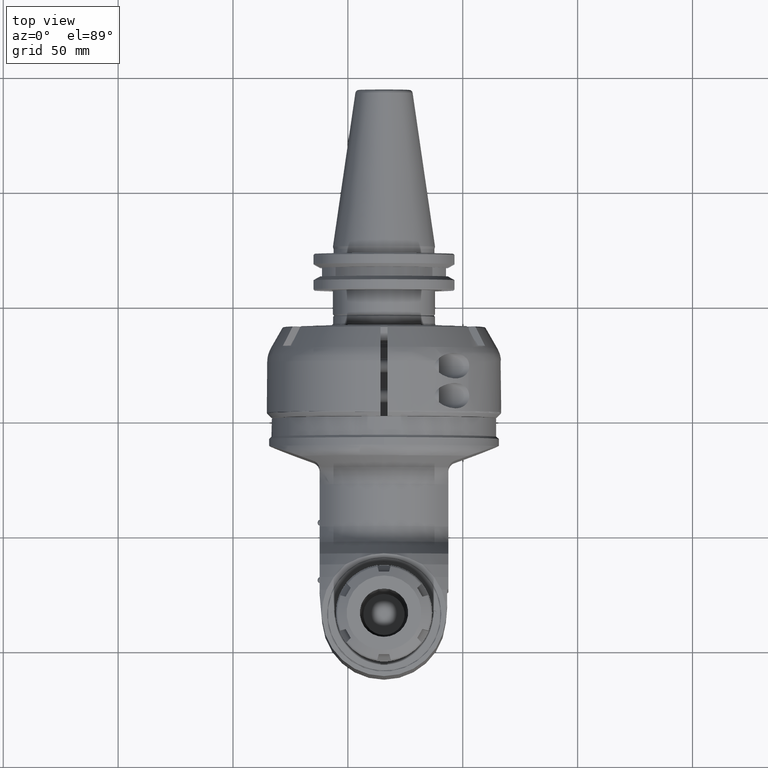
[diagram: clean part render]
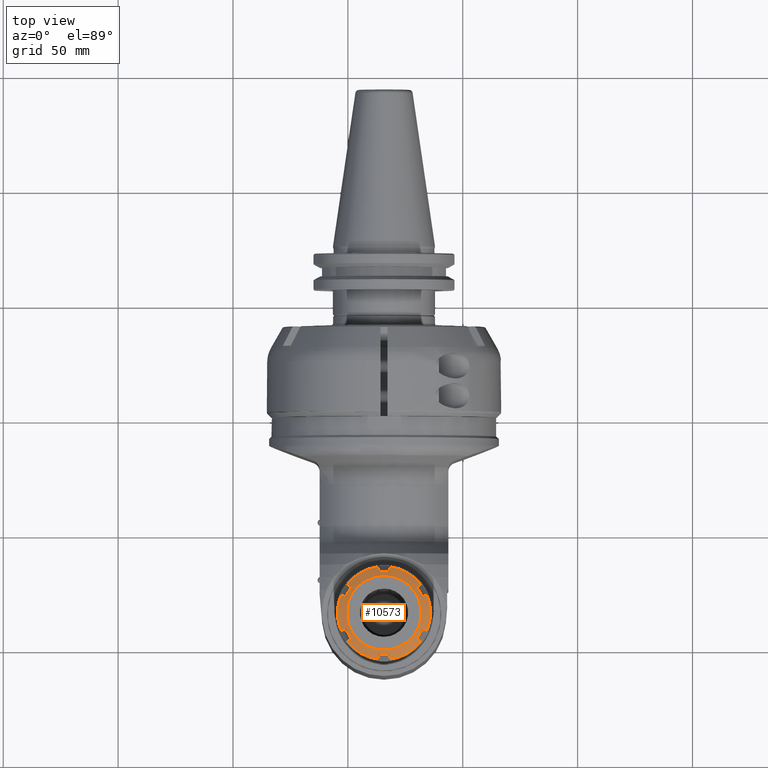
[diagram: same view with one face highlighted and labeled with its STEP entity id]
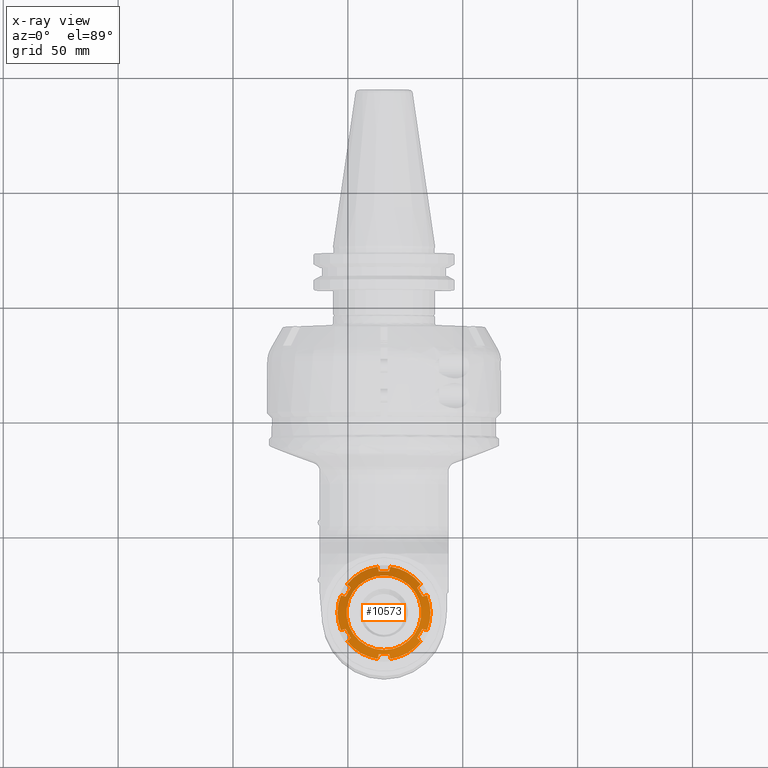
[diagram: x-ray of the same camera — body ghosted, the highlighted face saturated]
A machine part, top view. The second image highlights one B-rep face of the part: STEP entity #10573.
The next image is the same camera in x-ray: the body ghosted, the highlighted face saturated — about 0% of this face is hidden behind the body in this view.
In plain terms, the highlighted conical surface has half-angle 60 deg.
Its self-contained STEP definition (entity closure, byte-faithful):
#112=CONICAL_SURFACE('',#11471,18.25,1.0471975511966);
#404=(
BOUNDED_CURVE()
B_SPLINE_CURVE(2,(#16870,#16871,#16872),.UNSPECIFIED.,.F.,.F.)
B_SPLINE_CURVE_WITH_KNOTS((3,3),(-2.04181766349261,-1.49336527301887),
 .UNSPECIFIED.)
CURVE()
GEOMETRIC_REPRESENTATION_ITEM()
RATIONAL_B_SPLINE_CURVE((1.18733146254207,1.19657153956018,1.1873314625443))
REPRESENTATION_ITEM('')
);
#405=(
BOUNDED_CURVE()
B_SPLINE_CURVE(2,(#16875,#16876,#16877),.UNSPECIFIED.,.F.,.F.)
B_SPLINE_CURVE_WITH_KNOTS((3,3),(-1.02537702850283,-0.679971834420261),
 .UNSPECIFIED.)
CURVE()
GEOMETRIC_REPRESENTATION_ITEM()
RATIONAL_B_SPLINE_CURVE((1.0681827583946,1.06144565252281,1.05151055916344))
REPRESENTATION_ITEM('')
);
#406=(
BOUNDED_CURVE()
B_SPLINE_CURVE(2,(#16899,#16900,#16901),.UNSPECIFIED.,.F.,.F.)
B_SPLINE_CURVE_WITH_KNOTS((3,3),(0.679971647622974,1.02537702850832),
 .UNSPECIFIED.)
CURVE()
GEOMETRIC_REPRESENTATION_ITEM()
RATIONAL_B_SPLINE_CURVE((1.0515105484205,1.06144564888304,1.06818275839875))
REPRESENTATION_ITEM('')
);
#407=(
BOUNDED_CURVE()
B_SPLINE_CURVE(2,(#16912,#16913,#16914),.UNSPECIFIED.,.F.,.F.)
B_SPLINE_CURVE_WITH_KNOTS((3,3),(-2.04181760293169,-1.49336533351316),
 .UNSPECIFIED.)
CURVE()
GEOMETRIC_REPRESENTATION_ITEM()
RATIONAL_B_SPLINE_CURVE((1.18733146458299,1.19657153752098,1.18733146458292))
REPRESENTATION_ITEM('')
);
#408=(
BOUNDED_CURVE()
B_SPLINE_CURVE(2,(#16917,#16918,#16919),.UNSPECIFIED.,.F.,.F.)
B_SPLINE_CURVE_WITH_KNOTS((3,3),(2.48068688837164,2.82609226927719),
 .UNSPECIFIED.)
CURVE()
GEOMETRIC_REPRESENTATION_ITEM()
RATIONAL_B_SPLINE_CURVE((1.06818275839677,1.06144564888082,1.05151054841773))
REPRESENTATION_ITEM('')
);
#409=(
BOUNDED_CURVE()
B_SPLINE_CURVE(2,(#16943,#16944,#16945),.UNSPECIFIED.,.F.,.F.)
B_SPLINE_CURVE_WITH_KNOTS((3,3),(-2.82609226929858,-2.48068688839548),
 .UNSPECIFIED.)
CURVE()
GEOMETRIC_REPRESENTATION_ITEM()
RATIONAL_B_SPLINE_CURVE((1.0515105484154,1.06144564887802,1.06818275839371))
REPRESENTATION_ITEM('')
);
#410=(
BOUNDED_CURVE()
B_SPLINE_CURVE(2,(#16954,#16955,#16956),.UNSPECIFIED.,.F.,.F.)
B_SPLINE_CURVE_WITH_KNOTS((3,3),(-2.04181760293166,-1.49336533351213),
 .UNSPECIFIED.)
CURVE()
GEOMETRIC_REPRESENTATION_ITEM()
RATIONAL_B_SPLINE_CURVE((1.18733146458258,1.19657153752061,1.18733146458255))
REPRESENTATION_ITEM('')
);
#411=(
BOUNDED_CURVE()
B_SPLINE_CURVE(2,(#16959,#16960,#16961),.UNSPECIFIED.,.F.,.F.)
B_SPLINE_CURVE_WITH_KNOTS((3,3),(2.4806868883778,2.82609226928034),
 .UNSPECIFIED.)
CURVE()
GEOMETRIC_REPRESENTATION_ITEM()
RATIONAL_B_SPLINE_CURVE((1.06818275839299,1.06144564887741,1.05151054841492))
REPRESENTATION_ITEM('')
);
#412=(
BOUNDED_CURVE()
B_SPLINE_CURVE(2,(#16983,#16984,#16985),.UNSPECIFIED.,.F.,.F.)
B_SPLINE_CURVE_WITH_KNOTS((3,3),(0.679971878030446,1.02537702850891),
 .UNSPECIFIED.)
CURVE()
GEOMETRIC_REPRESENTATION_ITEM()
RATIONAL_B_SPLINE_CURVE((1.05151056167654,1.06144565337878,1.06818275840063))
REPRESENTATION_ITEM('')
);
#413=(
BOUNDED_CURVE()
B_SPLINE_CURVE(2,(#16997,#16998,#16999),.UNSPECIFIED.,.F.,.F.)
B_SPLINE_CURVE_WITH_KNOTS((3,3),(-2.04181765173791,-1.76759146822259),
 .UNSPECIFIED.)
CURVE()
GEOMETRIC_REPRESENTATION_ITEM()
RATIONAL_B_SPLINE_CURVE((1.18733146293815,1.19195150105168,1.19195150105168))
REPRESENTATION_ITEM('')
);
#414=(
BOUNDED_CURVE()
B_SPLINE_CURVE(2,(#17000,#17001,#17002),.UNSPECIFIED.,.F.,.F.)
B_SPLINE_CURVE_WITH_KNOTS((3,3),(-1.76759146822259,-1.49336527293742),
 .UNSPECIFIED.)
CURVE()
GEOMETRIC_REPRESENTATION_ITEM()
RATIONAL_B_SPLINE_CURVE((1.19195150105168,1.19195150105168,1.18733146254156))
REPRESENTATION_ITEM('')
);
#415=(
BOUNDED_CURVE()
B_SPLINE_CURVE(2,(#17005,#17006,#17007),.UNSPECIFIED.,.F.,.F.)
B_SPLINE_CURVE_WITH_KNOTS((3,3),(2.48068688838122,2.82609208220823),
 .UNSPECIFIED.)
CURVE()
GEOMETRIC_REPRESENTATION_ITEM()
RATIONAL_B_SPLINE_CURVE((1.06818275838734,1.06144565252115,1.05151055917244))
REPRESENTATION_ITEM('')
);
#416=(
BOUNDED_CURVE()
B_SPLINE_CURVE(2,(#17029,#17030,#17031),.UNSPECIFIED.,.F.,.F.)
B_SPLINE_CURVE_WITH_KNOTS((3,3),(-2.82609226927535,-2.48068688837049),
 .UNSPECIFIED.)
CURVE()
GEOMETRIC_REPRESENTATION_ITEM()
RATIONAL_B_SPLINE_CURVE((1.05151054841945,1.06144564888281,1.06818275839895))
REPRESENTATION_ITEM('')
);
#417=(
BOUNDED_CURVE()
B_SPLINE_CURVE(2,(#17042,#17043,#17044),.UNSPECIFIED.,.F.,.F.)
B_SPLINE_CURVE_WITH_KNOTS((3,3),(1.49336533351299,2.04181760293252),
 .UNSPECIFIED.)
CURVE()
GEOMETRIC_REPRESENTATION_ITEM()
RATIONAL_B_SPLINE_CURVE((1.18733146458257,1.1965715375206,1.18733146458253))
REPRESENTATION_ITEM('')
);
#418=(
BOUNDED_CURVE()
B_SPLINE_CURVE(2,(#17047,#17048,#17049),.UNSPECIFIED.,.F.,.F.)
B_SPLINE_CURVE_WITH_KNOTS((3,3),(2.48068688837722,2.82609226927994),
 .UNSPECIFIED.)
CURVE()
GEOMETRIC_REPRESENTATION_ITEM()
RATIONAL_B_SPLINE_CURVE((1.06818275839434,1.06144564887861,1.0515105484159))
REPRESENTATION_ITEM('')
);
#419=(
BOUNDED_CURVE()
B_SPLINE_CURVE(2,(#17071,#17072,#17073),.UNSPECIFIED.,.F.,.F.)
B_SPLINE_CURVE_WITH_KNOTS((3,3),(-2.82609226927632,-2.48068688837164),
 .UNSPECIFIED.)
CURVE()
GEOMETRIC_REPRESENTATION_ITEM()
RATIONAL_B_SPLINE_CURVE((1.05151054841778,1.06144564888083,1.06818275839677))
REPRESENTATION_ITEM('')
);
#420=(
BOUNDED_CURVE()
B_SPLINE_CURVE(2,(#17084,#17085,#17086),.UNSPECIFIED.,.F.,.F.)
B_SPLINE_CURVE_WITH_KNOTS((3,3),(-2.04181760293326,-1.49336533351451),
 .UNSPECIFIED.)
CURVE()
GEOMETRIC_REPRESENTATION_ITEM()
RATIONAL_B_SPLINE_CURVE((1.18733146458273,1.19657153752079,1.18733146458279))
REPRESENTATION_ITEM('')
);
#421=(
BOUNDED_CURVE()
B_SPLINE_CURVE(2,(#17089,#17090,#17091),.UNSPECIFIED.,.F.,.F.)
B_SPLINE_CURVE_WITH_KNOTS((3,3),(2.48068688836787,2.82609226927738),
 .UNSPECIFIED.)
CURVE()
GEOMETRIC_REPRESENTATION_ITEM()
RATIONAL_B_SPLINE_CURVE((1.06818275839879,1.06144564888261,1.05151054841915))
REPRESENTATION_ITEM('')
);
#422=(
BOUNDED_CURVE()
B_SPLINE_CURVE(2,(#17112,#17113,#17114),.UNSPECIFIED.,.F.,.F.)
B_SPLINE_CURVE_WITH_KNOTS((3,3),(0.679971834624865,1.02537702850298),
 .UNSPECIFIED.)
CURVE()
GEOMETRIC_REPRESENTATION_ITEM()
RATIONAL_B_SPLINE_CURVE((1.05151055917521,1.0614456525268,1.0681827583946))
REPRESENTATION_ITEM('')
);
#891=CIRCLE('',#11429,20.25);
#892=CIRCLE('',#11437,20.25);
#893=CIRCLE('',#11445,20.25);
#894=CIRCLE('',#11453,20.25);
#895=CIRCLE('',#11461,20.25);
#896=CIRCLE('',#11469,20.25);
#897=CIRCLE('',#11472,16.25);
#1511=FACE_OUTER_BOUND('',#2169,.T.);
#2169=EDGE_LOOP('',(#7436,#7437,#7438,#7439,#7440,#7441,#7442,#7443,#7444,
#7445,#7446,#7447,#7448,#7449,#7450,#7451,#7452,#7453,#7454,#7455,#7456,
#7457,#7458,#7459,#7460,#7461,#7462,#7463));
#2880=LINE('',#17117,#3569);
#3569=VECTOR('',#13120,18.25);
#4357=VERTEX_POINT('',#16866);
#4358=VERTEX_POINT('',#16868);
#4359=VERTEX_POINT('',#16874);
#4360=VERTEX_POINT('',#16887);
#4361=VERTEX_POINT('',#16898);
#4364=VERTEX_POINT('',#16910);
#4365=VERTEX_POINT('',#16916);
#4366=VERTEX_POINT('',#16929);
#4368=VERTEX_POINT('',#16942);
#4370=VERTEX_POINT('',#16952);
#4371=VERTEX_POINT('',#16958);
#4372=VERTEX_POINT('',#16971);
#4373=VERTEX_POINT('',#16982);
#4376=VERTEX_POINT('',#16994);
#4377=VERTEX_POINT('',#16996);
#4378=VERTEX_POINT('',#17004);
#4379=VERTEX_POINT('',#17017);
#4380=VERTEX_POINT('',#17028);
#4383=VERTEX_POINT('',#17040);
#4384=VERTEX_POINT('',#17046);
#4385=VERTEX_POINT('',#17059);
#4386=VERTEX_POINT('',#17070);
#4389=VERTEX_POINT('',#17082);
#4390=VERTEX_POINT('',#17088);
#4391=VERTEX_POINT('',#17101);
#4392=VERTEX_POINT('',#17116);
#5484=EDGE_CURVE('',#4358,#4357,#404,.T.);
#5485=EDGE_CURVE('',#4359,#4357,#405,.T.);
#5488=EDGE_CURVE('',#4359,#4360,#891,.T.);
#5489=EDGE_CURVE('',#4361,#4360,#406,.T.);
#5495=EDGE_CURVE('',#4361,#4364,#407,.T.);
#5496=EDGE_CURVE('',#4365,#4364,#408,.T.);
#5499=EDGE_CURVE('',#4365,#4366,#892,.T.);
#5501=EDGE_CURVE('',#4368,#4366,#409,.T.);
#5506=EDGE_CURVE('',#4368,#4370,#410,.T.);
#5507=EDGE_CURVE('',#4371,#4370,#411,.T.);
#5510=EDGE_CURVE('',#4371,#4372,#893,.T.);
#5511=EDGE_CURVE('',#4373,#4372,#412,.T.);
#5517=EDGE_CURVE('',#4373,#4377,#413,.T.);
#5518=EDGE_CURVE('',#4377,#4376,#414,.T.);
#5519=EDGE_CURVE('',#4378,#4376,#415,.T.);
#5522=EDGE_CURVE('',#4378,#4379,#894,.T.);
#5523=EDGE_CURVE('',#4380,#4379,#416,.T.);
#5529=EDGE_CURVE('',#4383,#4380,#417,.T.);
#5530=EDGE_CURVE('',#4384,#4383,#418,.T.);
#5532=EDGE_CURVE('',#4384,#4385,#895,.T.);
#5534=EDGE_CURVE('',#4386,#4385,#419,.T.);
#5540=EDGE_CURVE('',#4386,#4389,#420,.T.);
#5541=EDGE_CURVE('',#4390,#4389,#421,.T.);
#5544=EDGE_CURVE('',#4390,#4391,#896,.T.);
#5545=EDGE_CURVE('',#4358,#4391,#422,.T.);
#5546=EDGE_CURVE('',#4377,#4392,#2880,.T.);
#5547=EDGE_CURVE('',#4392,#4392,#897,.T.);
#7436=ORIENTED_EDGE('',*,*,#5517,.F.);
#7437=ORIENTED_EDGE('',*,*,#5511,.T.);
#7438=ORIENTED_EDGE('',*,*,#5510,.F.);
#7439=ORIENTED_EDGE('',*,*,#5507,.T.);
#7440=ORIENTED_EDGE('',*,*,#5506,.F.);
#7441=ORIENTED_EDGE('',*,*,#5501,.T.);
#7442=ORIENTED_EDGE('',*,*,#5499,.F.);
#7443=ORIENTED_EDGE('',*,*,#5496,.T.);
#7444=ORIENTED_EDGE('',*,*,#5495,.F.);
#7445=ORIENTED_EDGE('',*,*,#5489,.T.);
#7446=ORIENTED_EDGE('',*,*,#5488,.F.);
#7447=ORIENTED_EDGE('',*,*,#5485,.T.);
#7448=ORIENTED_EDGE('',*,*,#5484,.F.);
#7449=ORIENTED_EDGE('',*,*,#5545,.T.);
#7450=ORIENTED_EDGE('',*,*,#5544,.F.);
#7451=ORIENTED_EDGE('',*,*,#5541,.T.);
#7452=ORIENTED_EDGE('',*,*,#5540,.F.);
#7453=ORIENTED_EDGE('',*,*,#5534,.T.);
#7454=ORIENTED_EDGE('',*,*,#5532,.F.);
#7455=ORIENTED_EDGE('',*,*,#5530,.T.);
#7456=ORIENTED_EDGE('',*,*,#5529,.T.);
#7457=ORIENTED_EDGE('',*,*,#5523,.T.);
#7458=ORIENTED_EDGE('',*,*,#5522,.F.);
#7459=ORIENTED_EDGE('',*,*,#5519,.T.);
#7460=ORIENTED_EDGE('',*,*,#5518,.F.);
#7461=ORIENTED_EDGE('',*,*,#5546,.T.);
#7462=ORIENTED_EDGE('',*,*,#5547,.F.);
#7463=ORIENTED_EDGE('',*,*,#5546,.F.);
#10573=ADVANCED_FACE('',(#1511),#112,.T.);
#11429=AXIS2_PLACEMENT_3D('',#16896,#13019,#13020);
#11437=AXIS2_PLACEMENT_3D('',#16938,#13038,#13039);
#11445=AXIS2_PLACEMENT_3D('',#16980,#13057,#13058);
#11453=AXIS2_PLACEMENT_3D('',#17026,#13076,#13077);
#11461=AXIS2_PLACEMENT_3D('',#17060,#13095,#13096);
#11469=AXIS2_PLACEMENT_3D('',#17110,#13114,#13115);
#11471=AXIS2_PLACEMENT_3D('',#17115,#13118,#13119);
#11472=AXIS2_PLACEMENT_3D('',#17118,#13121,#13122);
#13019=DIRECTION('center_axis',(0.,1.,0.));
#13020=DIRECTION('ref_axis',(0.990389258049091,0.,-0.138308053058999));
#13038=DIRECTION('center_axis',(0.,1.,0.));
#13039=DIRECTION('ref_axis',(0.375416341527389,0.,-0.926856283635274));
#13057=DIRECTION('center_axis',(0.,1.,0.));
#13058=DIRECTION('ref_axis',(-0.614972916521619,0.,-0.788548230576224));
#13076=DIRECTION('center_axis',(0.,1.,0.));
#13077=DIRECTION('ref_axis',(-0.990389258049077,0.,0.138308053059097));
#13095=DIRECTION('center_axis',(0.,1.,0.));
#13096=DIRECTION('ref_axis',(-0.375416341527389,0.,0.926856283635274));
#13114=DIRECTION('center_axis',(0.,1.,0.));
#13115=DIRECTION('ref_axis',(0.614972916521792,0.,0.788548230576089));
#13118=DIRECTION('center_axis',(0.,1.,0.));
#13119=DIRECTION('ref_axis',(1.,0.,0.));
#13120=DIRECTION('',(0.86602540378444,-0.499999999999998,-1.06057523872491E-16));
#13121=DIRECTION('center_axis',(0.,-1.,0.));
#13122=DIRECTION('ref_axis',(1.,0.,0.));
#16866=CARTESIAN_POINT('',(108.000001184828,-77.4087619378161,-2.25000047960047));
#16868=CARTESIAN_POINT('',(108.000001186125,-77.4087619374535,2.25000048012549));
#16870=CARTESIAN_POINT('Ctrl Pts',(108.,-77.4087622331451,2.25000050130041));
#16871=CARTESIAN_POINT('Ctrl Pts',(108.,-77.5698881510301,2.69870521515109E-10));
#16872=CARTESIAN_POINT('Ctrl Pts',(108.,-77.4087622331843,-2.25000050075223));
#16874=CARTESIAN_POINT('',(110.0553824755,-76.19059935078,-2.800738074446));
#16875=CARTESIAN_POINT('Ctrl Pts',(110.055382475499,-76.190599350778,-2.80073807444686));
#16876=CARTESIAN_POINT('Ctrl Pts',(108.971209883754,-76.8337281849756,-2.5102349040329));
#16877=CARTESIAN_POINT('Ctrl Pts',(108.000001061233,-77.4087616407092,-2.25000028435645));
#16887=CARTESIAN_POINT('',(102.4532015596,-76.19059935078,-15.96810166916));
#16896=CARTESIAN_POINT('Origin',(90.,-76.19059935078,0.));
#16898=CARTESIAN_POINT('',(100.94855715886,-77.4087622685719,-14.4634572682329));
#16899=CARTESIAN_POINT('Ctrl Pts',(100.94855715911,-77.408762268556,-14.4634572687298));
#16900=CARTESIAN_POINT('Ctrl Pts',(101.65953170628,-76.8337285349924,-15.1744318159003));
#16901=CARTESIAN_POINT('Ctrl Pts',(102.453201559566,-76.1905993507713,-15.9681016691865));
#16910=CARTESIAN_POINT('',(97.0514428413842,-77.4087622685979,-16.7134572684373));
#16912=CARTESIAN_POINT('Ctrl Pts',(100.94855715897,-77.4087622690103,-14.4634572678488));
#16913=CARTESIAN_POINT('Ctrl Pts',(98.9999999999895,-77.569888115745,-15.5884572681175));
#16914=CARTESIAN_POINT('Ctrl Pts',(97.0514428410089,-77.4087622690091,-16.7134572683863));
#16916=CARTESIAN_POINT('',(97.60218091593,-76.19059935078,-18.76883974361));
#16917=CARTESIAN_POINT('Ctrl Pts',(97.6021809159253,-76.1905993507826,-18.7688397436128));
#16918=CARTESIAN_POINT('Ctrl Pts',(97.3116775873873,-76.8337285350421,-17.6846665617411));
#16919=CARTESIAN_POINT('Ctrl Pts',(97.051442841665,-77.4087622686362,-16.7134572688106));
#16929=CARTESIAN_POINT('',(82.39781908407,-76.19059935078,-18.76883974361));
#16938=CARTESIAN_POINT('Origin',(90.,-76.19059935078,0.));
#16942=CARTESIAN_POINT('',(82.9485571586045,-77.4087622685928,-16.7134572684422));
#16943=CARTESIAN_POINT('Ctrl Pts',(82.9485571583237,-77.408762268631,-16.7134572688154));
#16944=CARTESIAN_POINT('Ctrl Pts',(82.688322412602,-76.8337285350384,-17.6846665617436));
#16945=CARTESIAN_POINT('Ctrl Pts',(82.3978190840654,-76.190599350782,-18.7688397436099));
#16952=CARTESIAN_POINT('',(79.0514428411538,-77.4087622685922,-14.4634572681992));
#16954=CARTESIAN_POINT('Ctrl Pts',(82.9485571589797,-77.408762269004,-16.7134572683912));
#16955=CARTESIAN_POINT('Ctrl Pts',(80.9999999999951,-77.5698881157396,-15.58845726812));
#16956=CARTESIAN_POINT('Ctrl Pts',(79.0514428410103,-77.4087622690034,-14.4634572678487));
#16958=CARTESIAN_POINT('',(77.54679844044,-76.19059935078,-15.96810166917));
#16959=CARTESIAN_POINT('Ctrl Pts',(77.5467984404345,-76.1905993507812,-15.9681016691655));
#16960=CARTESIAN_POINT('Ctrl Pts',(78.3404682937647,-76.8337285350379,-15.1744318158353));
#16961=CARTESIAN_POINT('Ctrl Pts',(79.0514428409709,-77.4087622686304,-14.4634572686291));
#16971=CARTESIAN_POINT('',(69.94461752451,-76.19059935078,-2.800738074446));
#16980=CARTESIAN_POINT('Origin',(90.,-76.19059935078,0.));
#16982=CARTESIAN_POINT('',(71.9999986912281,-77.4087614941462,-2.25000035068437));
#16983=CARTESIAN_POINT('Ctrl Pts',(71.9999986912281,-77.4087614941462,-2.25000035068437));
#16984=CARTESIAN_POINT('Ctrl Pts',(71.0287899785089,-76.8337281032702,-2.51023494093954));
#16985=CARTESIAN_POINT('Ctrl Pts',(69.9446175245084,-76.1905993507823,-2.80073807444499));
#16994=CARTESIAN_POINT('',(71.9999975023773,-77.4087619373691,2.25000065551275));
#16996=CARTESIAN_POINT('',(72.,-77.4896374564574,2.96504822350882E-15));
#16997=CARTESIAN_POINT('Ctrl Pts',(72.,-77.4087622401055,-2.25000040410363));
#16998=CARTESIAN_POINT('Ctrl Pts',(72.,-77.4896374564574,-1.12063966908833));
#16999=CARTESIAN_POINT('Ctrl Pts',(72.,-77.4896374564574,3.72573220855239E-15));
#17000=CARTESIAN_POINT('Ctrl Pts',(72.,-77.4896374564574,3.72573220855239E-15));
#17001=CARTESIAN_POINT('Ctrl Pts',(72.,-77.4896374564574,1.12063971718645));
#17002=CARTESIAN_POINT('Ctrl Pts',(72.,-77.4087622331361,2.25000050142571));
#17004=CARTESIAN_POINT('',(69.94461752451,-76.19059935078,2.800738074446));
#17005=CARTESIAN_POINT('Ctrl Pts',(69.9446175245085,-76.1905993507821,2.80073807444497));
#17006=CARTESIAN_POINT('Ctrl Pts',(71.028790115454,-76.8337281845056,2.51023490424518));
#17007=CARTESIAN_POINT('Ctrl Pts',(71.9999989373392,-77.4087616398635,2.25000028473911));
#17017=CARTESIAN_POINT('',(77.54679844043,-76.19059935078,15.96810166916));
#17026=CARTESIAN_POINT('Origin',(90.,-76.19059935078,0.));
#17028=CARTESIAN_POINT('',(79.0514428411537,-77.4087622685921,14.4634572681993));
#17029=CARTESIAN_POINT('Ctrl Pts',(79.0514428409708,-77.4087622686304,14.4634572686292));
#17030=CARTESIAN_POINT('Ctrl Pts',(78.340468293765,-76.8337285350383,15.174431815835));
#17031=CARTESIAN_POINT('Ctrl Pts',(77.5467984404345,-76.1905993507813,15.9681016691655));
#17040=CARTESIAN_POINT('',(82.9485571586044,-77.4087622685927,16.7134572684423));
#17042=CARTESIAN_POINT('Ctrl Pts',(82.9485571589797,-77.4087622690039,16.7134572683913));
#17043=CARTESIAN_POINT('Ctrl Pts',(80.9999999999951,-77.5698881157396,15.5884572681201));
#17044=CARTESIAN_POINT('Ctrl Pts',(79.0514428410103,-77.4087622690033,14.4634572678488));
#17046=CARTESIAN_POINT('',(82.39781908407,-76.19059935078,18.76883974361));
#17047=CARTESIAN_POINT('Ctrl Pts',(82.3978190840654,-76.190599350782,18.76883974361));
#17048=CARTESIAN_POINT('Ctrl Pts',(82.688322412602,-76.8337285350384,17.6846665617436));
#17049=CARTESIAN_POINT('Ctrl Pts',(82.9485571583236,-77.4087622686309,16.7134572688156));
#17059=CARTESIAN_POINT('',(97.60218091593,-76.19059935078,18.76883974361));
#17060=CARTESIAN_POINT('Origin',(90.,-76.19059935078,0.));
#17070=CARTESIAN_POINT('',(97.0514428413855,-77.408762268595,16.7134572684422));
#17071=CARTESIAN_POINT('Ctrl Pts',(97.0514428416664,-77.4087622686333,16.7134572688155));
#17072=CARTESIAN_POINT('Ctrl Pts',(97.311677587388,-76.8337285350405,17.6846665617438));
#17073=CARTESIAN_POINT('Ctrl Pts',(97.6021809159253,-76.1905993507826,18.7688397436128));
#17082=CARTESIAN_POINT('',(100.94855715883,-77.4087622685962,14.4634572682029));
#17084=CARTESIAN_POINT('Ctrl Pts',(97.0514428410102,-77.4087622690062,16.7134572683912));
#17085=CARTESIAN_POINT('Ctrl Pts',(98.9999999999919,-77.5698881157422,15.5884572681217));
#17086=CARTESIAN_POINT('Ctrl Pts',(100.948557158973,-77.4087622690074,14.4634572678523));
#17088=CARTESIAN_POINT('',(102.4532015596,-76.19059935078,15.96810166917));
#17089=CARTESIAN_POINT('Ctrl Pts',(102.45320155957,-76.1905993507683,15.9681016691903));
#17090=CARTESIAN_POINT('Ctrl Pts',(101.659531706228,-76.8337285350347,15.174431815848));
#17091=CARTESIAN_POINT('Ctrl Pts',(100.948557159013,-77.4087622686344,14.4634572686328));
#17101=CARTESIAN_POINT('',(110.0553824755,-76.19059935078,2.800738074451));
#17110=CARTESIAN_POINT('Origin',(90.,-76.19059935078,0.));
#17112=CARTESIAN_POINT('Ctrl Pts',(108.000001062394,-77.4087616400215,2.25000028466767));
#17113=CARTESIAN_POINT('Ctrl Pts',(108.9712098844,-76.833728184592,2.51023490420619));
#17114=CARTESIAN_POINT('Ctrl Pts',(110.0553824755,-76.1905993507775,2.80073807444711));
#17115=CARTESIAN_POINT('Origin',(90.,-77.34529988916,0.));
#17116=CARTESIAN_POINT('',(73.749999999996,-78.5000004275369,1.99005104861494E-15));
#17117=CARTESIAN_POINT('',(71.75,-77.34529988916,2.23498040844392E-15));
#17118=CARTESIAN_POINT('Origin',(90.,-78.50000042753,0.));